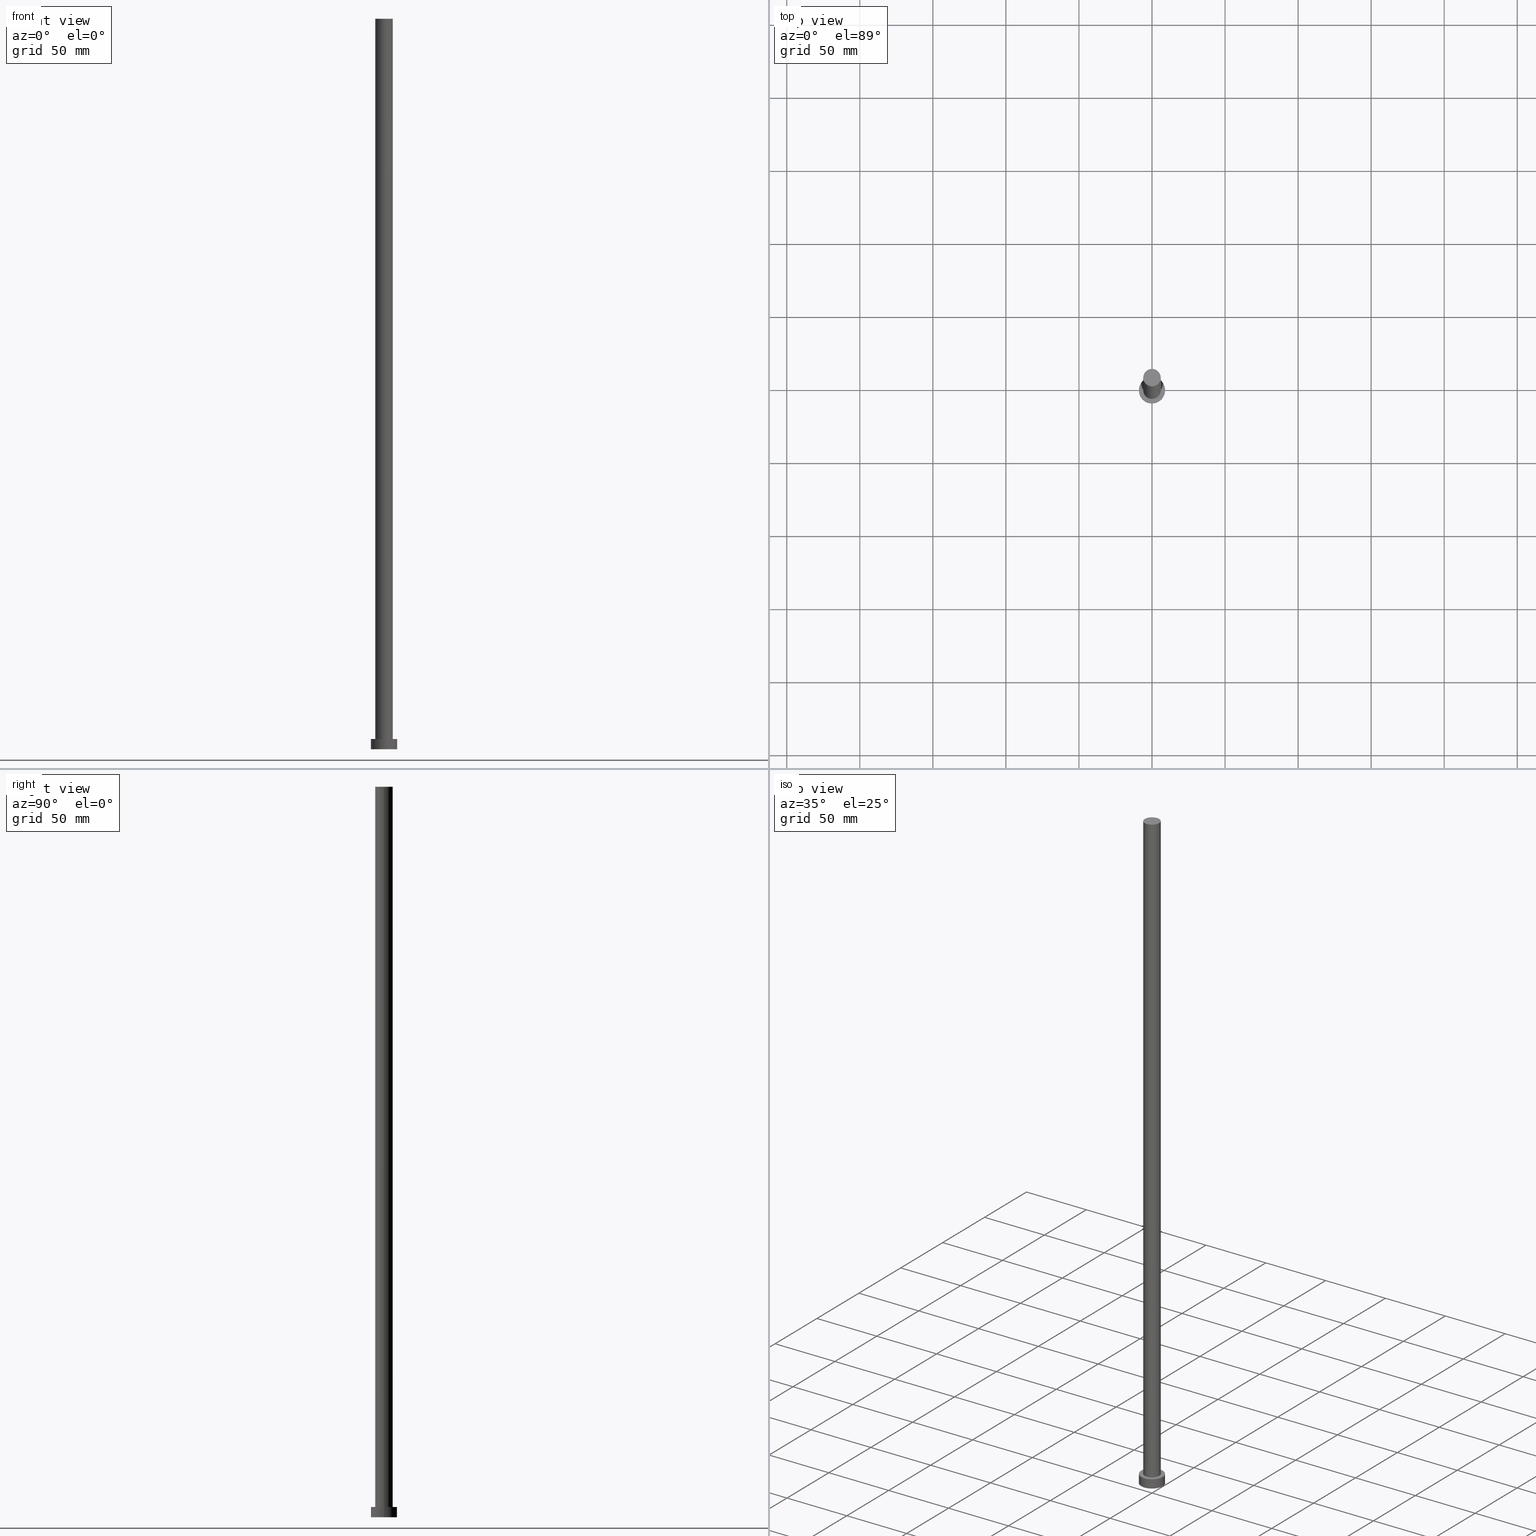
[diagram: canonical four-view strip — front | top / right | iso, engineering-drawing reading convention]
A machine part, canonical four-view strip (front | top / right | iso — engineering-drawing reading convention). The complete STEP part file that produces these views, byte-faithful:
ISO-10303-21;
HEADER;
FILE_DESCRIPTION (( 'STEP AP203' ),
    '1' );
FILE_NAME ('5dc0.STEP',
    '2023-02-12T11:05:07',
    ( '' ),
    ( '' ),
    'SwSTEP 2.0',
    'SolidWorks 2019',
    '' );
FILE_SCHEMA (( 'CONFIG_CONTROL_DESIGN' ));
ENDSEC;

DATA;
#1 = CC_DESIGN_DATE_AND_TIME_ASSIGNMENT ( #86, #197, ( #251 ) ) ;
#2 = EDGE_LOOP ( 'NONE', ( #146, #201, #82, #57 ) ) ;
#3 = DIRECTION ( 'NONE',  ( 0.000000000000000000, 0.000000000000000000, 1.000000000000000000 ) ) ;
#4 = DATE_TIME_ROLE ( 'classification_date' ) ;
#5 = PRODUCT_RELATED_PRODUCT_CATEGORY ( 'detail', '', ( #242 ) ) ;
#6 = DIRECTION ( 'NONE',  ( 1.000000000000000000, 0.000000000000000000, 0.000000000000000000 ) ) ;
#7 = VERTEX_POINT ( 'NONE', #47 ) ;
#8 = CALENDAR_DATE ( 2023, 12, 2 ) ;
#9 = ORIENTED_EDGE ( 'NONE', *, *, #106, .F. ) ;
#10 = CC_DESIGN_PERSON_AND_ORGANIZATION_ASSIGNMENT ( #200, #32, ( #251 ) ) ;
#11 = LINE ( 'NONE', #129, #53 ) ;
#12 = DIRECTION ( 'NONE',  ( -1.000000000000000000, 0.000000000000000000, 0.000000000000000000 ) ) ;
#13 = ORIENTED_EDGE ( 'NONE', *, *, #185, .F. ) ;
#14 = LINE ( 'NONE', #172, #73 ) ;
#15 = EDGE_LOOP ( 'NONE', ( #186, #222 ) ) ;
#16 = APPLICATION_CONTEXT ( 'configuration controlled 3d designs of mechanical parts and assemblies' ) ;
#17 = DIRECTION ( 'NONE',  ( 0.000000000000000000, 0.000000000000000000, 1.000000000000000000 ) ) ;
#18 = CC_DESIGN_PERSON_AND_ORGANIZATION_ASSIGNMENT ( #121, #181, ( #192 ) ) ;
#19 = DIRECTION ( 'NONE',  ( 0.000000000000000000, 0.000000000000000000, 1.000000000000000000 ) ) ;
#20 = DIRECTION ( 'NONE',  ( 1.000000000000000000, 0.000000000000000000, 0.000000000000000000 ) ) ;
#21 = APPROVAL_ROLE ( '' ) ;
#22 = CARTESIAN_POINT ( 'NONE',  ( 9.000000000000000000, 1.102182119232617714E-15, 0.000000000000000000 ) ) ;
#23 = DIRECTION ( 'NONE',  ( -0.000000000000000000, -0.000000000000000000, -1.000000000000000000 ) ) ;
#24 = APPLICATION_PROTOCOL_DEFINITION ( 'international standard', 'config_control_design', 1994, #114 ) ;
#25 = UNCERTAINTY_MEASURE_WITH_UNIT (LENGTH_MEASURE( 1.000000000000000082E-05 ), #79, 'distance_accuracy_value', 'NONE');
#26 = PERSON_AND_ORGANIZATION ( #35, #141 ) ;
#27 = DIRECTION ( 'NONE',  ( 1.000000000000000000, 0.000000000000000000, -0.000000000000000000 ) ) ;
#28 = EDGE_CURVE ( 'NONE', #55, #75, #158, .T. ) ;
#29 = CC_DESIGN_APPROVAL ( #54, ( #74 ) ) ;
#30 = ADVANCED_FACE ( 'NONE', ( #182 ), #241, .T. ) ;
#31 = ORIENTED_EDGE ( 'NONE', *, *, #170, .T. ) ;
#32 = PERSON_AND_ORGANIZATION_ROLE ( 'creator' ) ;
#33 = EDGE_CURVE ( 'NONE', #160, #113, #134, .T. ) ;
#34 = SECURITY_CLASSIFICATION_LEVEL ( 'unclassified' ) ;
#35 = PERSON ( 'NEUR�EN�', 'NEUR�EN�', 'NEUR�EN�', ('NEUR�EN�'), ('NEUR�EN�'), ('NEUR�EN�') ) ;
#36 = DIRECTION ( 'NONE',  ( 0.000000000000000000, 0.000000000000000000, 1.000000000000000000 ) ) ;
#37 = ORIENTED_EDGE ( 'NONE', *, *, #162, .F. ) ;
#38 = AXIS2_PLACEMENT_3D ( 'NONE', #169, #151, #6 ) ;
#39 = DATE_AND_TIME ( #238, #96 ) ;
#40 = LOCAL_TIME ( 12, 5, 7.000000000000000000, #198 ) ;
#41 = FACE_OUTER_BOUND ( 'NONE', #236, .T. ) ;
#42 = APPROVAL_PERSON_ORGANIZATION ( #194, #76, #124 ) ;
#43 = EDGE_LOOP ( 'NONE', ( #133, #178 ) ) ;
#44 = CARTESIAN_POINT ( 'NONE',  ( 0.000000000000000000, 0.000000000000000000, 7.000000000000000000 ) ) ;
#45 = ADVANCED_FACE ( 'NONE', ( #41 ), #171, .T. ) ;
#46 = COORDINATED_UNIVERSAL_TIME_OFFSET ( 1, 0, .AHEAD. ) ;
#47 = CARTESIAN_POINT ( 'NONE',  ( -9.000000000000000000, 0.000000000000000000, 0.000000000000000000 ) ) ;
#48 = PERSON_AND_ORGANIZATION ( #35, #141 ) ;
#49 = CIRCLE ( 'NONE', #180, 9.000000000000000000 ) ;
#50 = AXIS2_PLACEMENT_3D ( 'NONE', #83, #68, #148 ) ;
#51 = DIRECTION ( 'NONE',  ( 0.000000000000000000, 0.000000000000000000, 1.000000000000000000 ) ) ;
#52 = APPROVAL ( #72, 'NEUR�EN�' ) ;
#53 = VECTOR ( 'NONE', #253, 1000.000000000000000 ) ;
#54 = APPROVAL ( #223, 'NEUR�EN�' ) ;
#55 = VERTEX_POINT ( 'NONE', #163 ) ;
#56 = CLOSED_SHELL ( 'NONE', ( #210, #147, #30, #240, #225, #193, #45 ) ) ;
#57 = ORIENTED_EDGE ( 'NONE', *, *, #255, .T. ) ;
#58 = AXIS2_PLACEMENT_3D ( 'NONE', #247, #51, #27 ) ;
#59 = ORIENTED_EDGE ( 'NONE', *, *, #33, .F. ) ;
#60 = CARTESIAN_POINT ( 'NONE',  ( 0.000000000000000000, 0.000000000000000000, 7.000000000000000000 ) ) ;
#61 = CIRCLE ( 'NONE', #66, 9.000000000000000000 ) ;
#62 = ORIENTED_EDGE ( 'NONE', *, *, #63, .F. ) ;
#63 = EDGE_CURVE ( 'NONE', #126, #7, #179, .T. ) ;
#64 = CARTESIAN_POINT ( 'NONE',  ( 0.000000000000000000, 0.000000000000000000, 7.000000000000000000 ) ) ;
#65 = CC_DESIGN_PERSON_AND_ORGANIZATION_ASSIGNMENT ( #166, #122, ( #74 ) ) ;
#66 = AXIS2_PLACEMENT_3D ( 'NONE', #71, #67, #245 ) ;
#67 = DIRECTION ( 'NONE',  ( 0.000000000000000000, 0.000000000000000000, 1.000000000000000000 ) ) ;
#68 = DIRECTION ( 'NONE',  ( 0.000000000000000000, 0.000000000000000000, 1.000000000000000000 ) ) ;
#69 = VERTEX_POINT ( 'NONE', #233 ) ;
#70 = EDGE_CURVE ( 'NONE', #95, #7, #61, .T. ) ;
#71 = CARTESIAN_POINT ( 'NONE',  ( 0.000000000000000000, 0.000000000000000000, 0.000000000000000000 ) ) ;
#72 = APPROVAL_STATUS ( 'not_yet_approved' ) ;
#73 = VECTOR ( 'NONE', #78, 1000.000000000000000 ) ;
#74 = SECURITY_CLASSIFICATION ( '', '', #34 ) ;
#75 = VERTEX_POINT ( 'NONE', #224 ) ;
#76 = APPROVAL ( #232, 'NEUR�EN�' ) ;
#77 = CC_DESIGN_APPROVAL ( #52, ( #192 ) ) ;
#78 = DIRECTION ( 'NONE',  ( -0.000000000000000000, -0.000000000000000000, -1.000000000000000000 ) ) ;
#79 =( LENGTH_UNIT ( ) NAMED_UNIT ( * ) SI_UNIT ( .MILLI., .METRE. ) );
#80 = ADVANCED_BREP_SHAPE_REPRESENTATION ( '5dc0', ( #127, #250 ), #81 ) ;
#81 =( GEOMETRIC_REPRESENTATION_CONTEXT ( 3 ) GLOBAL_UNCERTAINTY_ASSIGNED_CONTEXT ( ( #25 ) ) GLOBAL_UNIT_ASSIGNED_CONTEXT ( ( #79, #110, #215 ) ) REPRESENTATION_CONTEXT ( 'NONE', 'WORKASPACE' ) );
#82 = ORIENTED_EDGE ( 'NONE', *, *, #63, .T. ) ;
#83 = CARTESIAN_POINT ( 'NONE',  ( 0.000000000000000000, 0.000000000000000000, 7.000000000000000000 ) ) ;
#84 = CIRCLE ( 'NONE', #218, 9.000000000000000000 ) ;
#85 = CARTESIAN_POINT ( 'NONE',  ( -9.000000000000000000, 0.000000000000000000, 7.000000000000000000 ) ) ;
#86 = DATE_AND_TIME ( #104, #175 ) ;
#87 = CALENDAR_DATE ( 2023, 12, 2 ) ;
#88 = AXIS2_PLACEMENT_3D ( 'NONE', #183, #89, #12 ) ;
#89 = DIRECTION ( 'NONE',  ( -0.000000000000000000, -0.000000000000000000, -1.000000000000000000 ) ) ;
#90 = DIRECTION ( 'NONE',  ( 1.000000000000000000, 0.000000000000000000, -0.000000000000000000 ) ) ;
#91 = DATE_AND_TIME ( #8, #140 ) ;
#92 = DIRECTION ( 'NONE',  ( -0.000000000000000000, -0.000000000000000000, -1.000000000000000000 ) ) ;
#93 = CARTESIAN_POINT ( 'NONE',  ( 0.000000000000000000, 0.000000000000000000, 500.0000000000000000 ) ) ;
#94 = DIRECTION ( 'NONE',  ( -0.000000000000000000, -0.000000000000000000, -1.000000000000000000 ) ) ;
#95 = VERTEX_POINT ( 'NONE', #22 ) ;
#96 = LOCAL_TIME ( 12, 5, 7.000000000000000000, #206 ) ;
#97 = LOCAL_TIME ( 12, 5, 7.000000000000000000, #46 ) ;
#98 = DIRECTION ( 'NONE',  ( -1.000000000000000000, 0.000000000000000000, 0.000000000000000000 ) ) ;
#99 = ORIENTED_EDGE ( 'NONE', *, *, #234, .T. ) ;
#100 = CC_DESIGN_PERSON_AND_ORGANIZATION_ASSIGNMENT ( #48, #209, ( #242 ) ) ;
#101 = FACE_BOUND ( 'NONE', #184, .T. ) ;
#102 = CARTESIAN_POINT ( 'NONE',  ( 0.000000000000000000, 0.000000000000000000, 0.000000000000000000 ) ) ;
#103 = AXIS2_PLACEMENT_3D ( 'NONE', #191, #19, #156 ) ;
#104 = CALENDAR_DATE ( 2023, 12, 2 ) ;
#105 = APPROVAL_DATE_TIME ( #205, #52 ) ;
#106 = EDGE_CURVE ( 'NONE', #75, #55, #227, .T. ) ;
#107 = FACE_OUTER_BOUND ( 'NONE', #111, .T. ) ;
#108 = DIRECTION ( 'NONE',  ( 0.000000000000000000, 0.000000000000000000, 1.000000000000000000 ) ) ;
#109 = DIRECTION ( 'NONE',  ( 1.000000000000000000, 0.000000000000000000, 0.000000000000000000 ) ) ;
#110 =( NAMED_UNIT ( * ) PLANE_ANGLE_UNIT ( ) SI_UNIT ( $, .RADIAN. ) );
#111 = EDGE_LOOP ( 'NONE', ( #9, #246, #119, #131 ) ) ;
#112 = DIRECTION ( 'NONE',  ( 1.000000000000000000, 0.000000000000000000, 0.000000000000000000 ) ) ;
#113 = VERTEX_POINT ( 'NONE', #211 ) ;
#114 = APPLICATION_CONTEXT ( 'configuration controlled 3d designs of mechanical parts and assemblies' ) ;
#115 = MECHANICAL_CONTEXT ( 'NONE', #114, 'mechanical' ) ;
#116 = APPLICATION_PROTOCOL_DEFINITION ( 'international standard', 'config_control_design', 1994, #16 ) ;
#117 = APPROVAL_ROLE ( '' ) ;
#118 = DIRECTION ( 'NONE',  ( -0.000000000000000000, -0.000000000000000000, -1.000000000000000000 ) ) ;
#119 = ORIENTED_EDGE ( 'NONE', *, *, #33, .T. ) ;
#120 = EDGE_CURVE ( 'NONE', #69, #95, #11, .T. ) ;
#121 = PERSON_AND_ORGANIZATION ( #35, #141 ) ;
#122 = PERSON_AND_ORGANIZATION_ROLE ( 'classification_officer' ) ;
#123 = CARTESIAN_POINT ( 'NONE',  ( 0.000000000000000000, 0.000000000000000000, 7.000000000000000000 ) ) ;
#124 = APPROVAL_ROLE ( '' ) ;
#125 = CARTESIAN_POINT ( 'NONE',  ( 6.000000000000000888, 7.347880794884120722E-16, 500.0000000000000000 ) ) ;
#126 = VERTEX_POINT ( 'NONE', #249 ) ;
#127 = MANIFOLD_SOLID_BREP ( 'P�idat vysunut�m3', #56 ) ;
#128 = CARTESIAN_POINT ( 'NONE',  ( 0.000000000000000000, 0.000000000000000000, 0.000000000000000000 ) ) ;
#129 = CARTESIAN_POINT ( 'NONE',  ( 9.000000000000000000, 1.102182119232617714E-15, 7.000000000000000000 ) ) ;
#130 = ORIENTED_EDGE ( 'NONE', *, *, #120, .T. ) ;
#131 = ORIENTED_EDGE ( 'NONE', *, *, #170, .F. ) ;
#132 = DIRECTION ( 'NONE',  ( 0.000000000000000000, 0.000000000000000000, 1.000000000000000000 ) ) ;
#133 = ORIENTED_EDGE ( 'NONE', *, *, #255, .F. ) ;
#134 = CIRCLE ( 'NONE', #161, 6.000000000000000888 ) ;
#135 = PRODUCT_DEFINITION_SHAPE ( 'NONE', 'NONE',  #251 ) ;
#136 = APPROVAL_PERSON_ORGANIZATION ( #26, #54, #21 ) ;
#137 = CC_DESIGN_APPROVAL ( #76, ( #251 ) ) ;
#138 = APPROVAL_DATE_TIME ( #91, #76 ) ;
#139 = VECTOR ( 'NONE', #118, 1000.000000000000000 ) ;
#140 = LOCAL_TIME ( 12, 5, 7.000000000000000000, #164 ) ;
#141 = ORGANIZATION ( 'NEUR�EN�', 'NEUR�EN�', '' ) ;
#142 = AXIS2_PLACEMENT_3D ( 'NONE', #60, #203, #159 ) ;
#143 = CIRCLE ( 'NONE', #196, 6.000000000000000888 ) ;
#144 = PERSON_AND_ORGANIZATION ( #35, #141 ) ;
#145 = ORIENTED_EDGE ( 'NONE', *, *, #234, .F. ) ;
#146 = ORIENTED_EDGE ( 'NONE', *, *, #120, .F. ) ;
#147 = ADVANCED_FACE ( 'NONE', ( #187 ), #221, .T. ) ;
#148 = DIRECTION ( 'NONE',  ( 1.000000000000000000, 0.000000000000000000, -0.000000000000000000 ) ) ;
#149 = DATE_AND_TIME ( #248, #97 ) ;
#150 = PLANE ( 'NONE',  #58 ) ;
#151 = DIRECTION ( 'NONE',  ( 0.000000000000000000, 0.000000000000000000, 1.000000000000000000 ) ) ;
#152 = PLANE ( 'NONE',  #50 ) ;
#153 = CYLINDRICAL_SURFACE ( 'NONE', #235, 6.000000000000000888 ) ;
#154 = CIRCLE ( 'NONE', #103, 9.000000000000000000 ) ;
#155 = EDGE_CURVE ( 'NONE', #126, #69, #49, .T. ) ;
#156 = DIRECTION ( 'NONE',  ( 1.000000000000000000, 0.000000000000000000, 0.000000000000000000 ) ) ;
#157 = PERSON_AND_ORGANIZATION ( #35, #141 ) ;
#158 = CIRCLE ( 'NONE', #38, 6.000000000000000888 ) ;
#159 = DIRECTION ( 'NONE',  ( -1.000000000000000000, 0.000000000000000000, 0.000000000000000000 ) ) ;
#160 = VERTEX_POINT ( 'NONE', #190 ) ;
#161 = AXIS2_PLACEMENT_3D ( 'NONE', #216, #3, #208 ) ;
#162 = EDGE_CURVE ( 'NONE', #75, #160, #167, .T. ) ;
#163 = CARTESIAN_POINT ( 'NONE',  ( -6.000000000000000888, 0.000000000000000000, 500.0000000000000000 ) ) ;
#164 = COORDINATED_UNIVERSAL_TIME_OFFSET ( 1, 0, .AHEAD. ) ;
#165 = ORIENTED_EDGE ( 'NONE', *, *, #28, .F. ) ;
#166 = PERSON_AND_ORGANIZATION ( #35, #141 ) ;
#167 = LINE ( 'NONE', #125, #173 ) ;
#168 = FACE_OUTER_BOUND ( 'NONE', #43, .T. ) ;
#169 = CARTESIAN_POINT ( 'NONE',  ( 0.000000000000000000, 0.000000000000000000, 500.0000000000000000 ) ) ;
#170 = EDGE_CURVE ( 'NONE', #55, #113, #14, .T. ) ;
#171 = PLANE ( 'NONE',  #199 ) ;
#172 = CARTESIAN_POINT ( 'NONE',  ( -6.000000000000000888, 0.000000000000000000, 500.0000000000000000 ) ) ;
#173 = VECTOR ( 'NONE', #94, 1000.000000000000000 ) ;
#174 = DESIGN_CONTEXT ( 'detailed design', #16, 'design' ) ;
#175 = LOCAL_TIME ( 12, 5, 7.000000000000000000, #177 ) ;
#176 = FACE_OUTER_BOUND ( 'NONE', #15, .T. ) ;
#177 = COORDINATED_UNIVERSAL_TIME_OFFSET ( 1, 0, .AHEAD. ) ;
#178 = ORIENTED_EDGE ( 'NONE', *, *, #70, .F. ) ;
#179 = LINE ( 'NONE', #85, #139 ) ;
#180 = AXIS2_PLACEMENT_3D ( 'NONE', #123, #36, #109 ) ;
#181 = PERSON_AND_ORGANIZATION_ROLE ( 'design_supplier' ) ;
#182 = FACE_OUTER_BOUND ( 'NONE', #2, .T. ) ;
#183 = CARTESIAN_POINT ( 'NONE',  ( 0.000000000000000000, 0.000000000000000000, 500.0000000000000000 ) ) ;
#184 = EDGE_LOOP ( 'NONE', ( #145, #59 ) ) ;
#185 = EDGE_CURVE ( 'NONE', #69, #126, #154, .T. ) ;
#186 = ORIENTED_EDGE ( 'NONE', *, *, #155, .T. ) ;
#187 = FACE_OUTER_BOUND ( 'NONE', #188, .T. ) ;
#188 = EDGE_LOOP ( 'NONE', ( #13, #130, #214, #62 ) ) ;
#189 = SHAPE_DEFINITION_REPRESENTATION ( #135, #80 ) ;
#190 = CARTESIAN_POINT ( 'NONE',  ( 6.000000000000000888, 7.347880794884120722E-16, 7.000000000000000000 ) ) ;
#191 = CARTESIAN_POINT ( 'NONE',  ( 0.000000000000000000, 0.000000000000000000, 7.000000000000000000 ) ) ;
#192 = PRODUCT_DEFINITION_FORMATION_WITH_SPECIFIED_SOURCE ( 'LIBOVOLN�', '', #242, .NOT_KNOWN. ) ;
#193 = ADVANCED_FACE ( 'NONE', ( #239 ), #153, .T. ) ;
#194 = PERSON_AND_ORGANIZATION ( #35, #141 ) ;
#195 = AXIS2_PLACEMENT_3D ( 'NONE', #228, #213, #112 ) ;
#196 = AXIS2_PLACEMENT_3D ( 'NONE', #44, #252, #230 ) ;
#197 = DATE_TIME_ROLE ( 'creation_date' ) ;
#198 = COORDINATED_UNIVERSAL_TIME_OFFSET ( 1, 0, .AHEAD. ) ;
#199 = AXIS2_PLACEMENT_3D ( 'NONE', #93, #108, #90 ) ;
#200 = PERSON_AND_ORGANIZATION ( #35, #141 ) ;
#201 = ORIENTED_EDGE ( 'NONE', *, *, #155, .F. ) ;
#202 = PERSON_AND_ORGANIZATION_ROLE ( 'creator' ) ;
#203 = DIRECTION ( 'NONE',  ( -0.000000000000000000, -0.000000000000000000, -1.000000000000000000 ) ) ;
#204 = EDGE_LOOP ( 'NONE', ( #37, #165, #31, #99 ) ) ;
#205 = DATE_AND_TIME ( #87, #40 ) ;
#206 = COORDINATED_UNIVERSAL_TIME_OFFSET ( 1, 0, .AHEAD. ) ;
#207 = APPROVAL_DATE_TIME ( #149, #54 ) ;
#208 = DIRECTION ( 'NONE',  ( 1.000000000000000000, 0.000000000000000000, 0.000000000000000000 ) ) ;
#209 = PERSON_AND_ORGANIZATION_ROLE ( 'design_owner' ) ;
#210 = ADVANCED_FACE ( 'NONE', ( #107 ), #243, .T. ) ;
#211 = CARTESIAN_POINT ( 'NONE',  ( -6.000000000000000888, 0.000000000000000000, 7.000000000000000000 ) ) ;
#212 = DIRECTION ( 'NONE',  ( 1.000000000000000000, 0.000000000000000000, 0.000000000000000000 ) ) ;
#213 = DIRECTION ( 'NONE',  ( 0.000000000000000000, 0.000000000000000000, 1.000000000000000000 ) ) ;
#214 = ORIENTED_EDGE ( 'NONE', *, *, #70, .T. ) ;
#215 =( NAMED_UNIT ( * ) SI_UNIT ( $, .STERADIAN. ) SOLID_ANGLE_UNIT ( ) );
#216 = CARTESIAN_POINT ( 'NONE',  ( 0.000000000000000000, 0.000000000000000000, 7.000000000000000000 ) ) ;
#217 = CC_DESIGN_PERSON_AND_ORGANIZATION_ASSIGNMENT ( #144, #202, ( #192 ) ) ;
#218 = AXIS2_PLACEMENT_3D ( 'NONE', #102, #132, #20 ) ;
#219 = CC_DESIGN_DATE_AND_TIME_ASSIGNMENT ( #39, #4, ( #74 ) ) ;
#220 = CC_DESIGN_SECURITY_CLASSIFICATION ( #74, ( #192 ) ) ;
#221 = CYLINDRICAL_SURFACE ( 'NONE', #229, 9.000000000000000000 ) ;
#222 = ORIENTED_EDGE ( 'NONE', *, *, #185, .T. ) ;
#223 = APPROVAL_STATUS ( 'not_yet_approved' ) ;
#224 = CARTESIAN_POINT ( 'NONE',  ( 6.000000000000000888, 7.347880794884120722E-16, 500.0000000000000000 ) ) ;
#225 = ADVANCED_FACE ( 'NONE', ( #168 ), #150, .F. ) ;
#226 = DIRECTION ( 'NONE',  ( -1.000000000000000000, 0.000000000000000000, 0.000000000000000000 ) ) ;
#227 = CIRCLE ( 'NONE', #195, 6.000000000000000888 ) ;
#228 = CARTESIAN_POINT ( 'NONE',  ( 0.000000000000000000, 0.000000000000000000, 500.0000000000000000 ) ) ;
#229 = AXIS2_PLACEMENT_3D ( 'NONE', #64, #92, #98 ) ;
#230 = DIRECTION ( 'NONE',  ( 1.000000000000000000, 0.000000000000000000, 0.000000000000000000 ) ) ;
#231 = CARTESIAN_POINT ( 'NONE',  ( 0.000000000000000000, 0.000000000000000000, 500.0000000000000000 ) ) ;
#232 = APPROVAL_STATUS ( 'not_yet_approved' ) ;
#233 = CARTESIAN_POINT ( 'NONE',  ( 9.000000000000000000, 1.102182119232617714E-15, 7.000000000000000000 ) ) ;
#234 = EDGE_CURVE ( 'NONE', #113, #160, #143, .T. ) ;
#235 = AXIS2_PLACEMENT_3D ( 'NONE', #231, #23, #226 ) ;
#236 = EDGE_LOOP ( 'NONE', ( #254, #237 ) ) ;
#237 = ORIENTED_EDGE ( 'NONE', *, *, #106, .T. ) ;
#238 = CALENDAR_DATE ( 2023, 12, 2 ) ;
#239 = FACE_OUTER_BOUND ( 'NONE', #204, .T. ) ;
#240 = ADVANCED_FACE ( 'NONE', ( #101, #176 ), #152, .T. ) ;
#241 = CYLINDRICAL_SURFACE ( 'NONE', #142, 9.000000000000000000 ) ;
#242 = PRODUCT ( '5dc0', '5dc0', '', ( #115 ) ) ;
#243 = CYLINDRICAL_SURFACE ( 'NONE', #88, 6.000000000000000888 ) ;
#244 = APPROVAL_PERSON_ORGANIZATION ( #157, #52, #117 ) ;
#245 = DIRECTION ( 'NONE',  ( 1.000000000000000000, 0.000000000000000000, 0.000000000000000000 ) ) ;
#246 = ORIENTED_EDGE ( 'NONE', *, *, #162, .T. ) ;
#247 = CARTESIAN_POINT ( 'NONE',  ( 0.000000000000000000, 0.000000000000000000, 0.000000000000000000 ) ) ;
#248 = CALENDAR_DATE ( 2023, 12, 2 ) ;
#249 = CARTESIAN_POINT ( 'NONE',  ( -9.000000000000000000, 0.000000000000000000, 7.000000000000000000 ) ) ;
#250 = AXIS2_PLACEMENT_3D ( 'NONE', #128, #17, #212 ) ;
#251 = PRODUCT_DEFINITION ( 'NEZN�M�', '', #192, #174 ) ;
#252 = DIRECTION ( 'NONE',  ( 0.000000000000000000, 0.000000000000000000, 1.000000000000000000 ) ) ;
#253 = DIRECTION ( 'NONE',  ( -0.000000000000000000, -0.000000000000000000, -1.000000000000000000 ) ) ;
#254 = ORIENTED_EDGE ( 'NONE', *, *, #28, .T. ) ;
#255 = EDGE_CURVE ( 'NONE', #7, #95, #84, .T. ) ;
ENDSEC;
END-ISO-10303-21;
